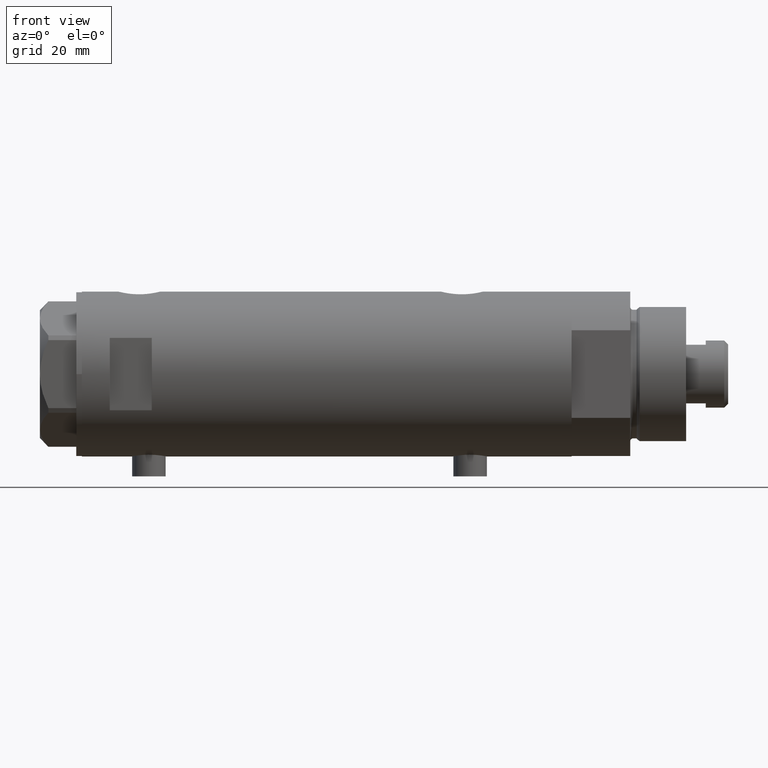
[diagram: clean part render]
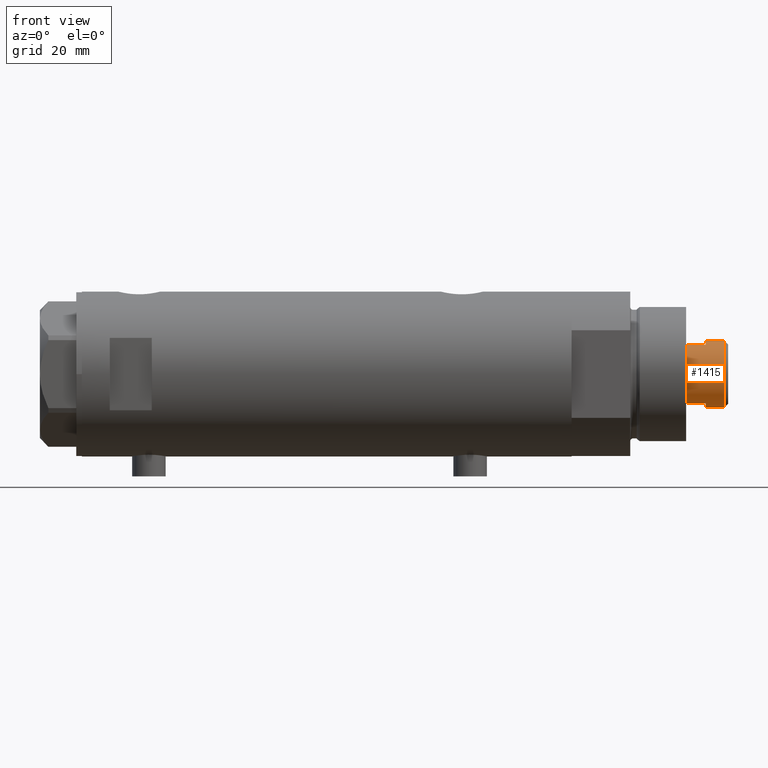
[diagram: same view with one face highlighted and labeled with its STEP entity id]
A machine part, front view. The second image highlights one B-rep face of the part: STEP entity #1415.
In plain terms, the highlighted cylindrical surface (edge-blend (fillet) strip) has radius 12 mm, axis along (-1, -0, 0).
Its self-contained STEP definition (entity closure, byte-faithful):
#82 = CARTESIAN_POINT ( 'NONE',  ( 0.000000000000000000, 0.000000000000000000, 206.2999999999999829 ) ) ;
#117 = VERTEX_POINT ( 'NONE', #705 ) ;
#145 = CARTESIAN_POINT ( 'NONE',  ( 0.000000000000000000, 0.000000000000000000, 192.6999999999999886 ) ) ;
#253 = CYLINDRICAL_SURFACE ( 'NONE', #973, 12.00000000000000000 ) ;
#389 = ORIENTED_EDGE ( 'NONE', *, *, #3303, .T. ) ;
#461 = CIRCLE ( 'NONE', #3798, 12.00000000000000000 ) ;
#558 = CARTESIAN_POINT ( 'NONE',  ( 12.00000000000000355, 1.469576158976824342E-15, 199.6999999999999886 ) ) ;
#677 = DIRECTION ( 'NONE',  ( -0.000000000000000000, -0.000000000000000000, -1.000000000000000000 ) ) ;
#698 = DIRECTION ( 'NONE',  ( -0.000000000000000000, -0.000000000000000000, -1.000000000000000000 ) ) ;
#705 = CARTESIAN_POINT ( 'NONE',  ( 10.48861764008966269, -5.830000000000016058, 192.6999999999999886 ) ) ;
#732 = DIRECTION ( 'NONE',  ( 0.000000000000000000, 0.000000000000000000, 1.000000000000000000 ) ) ;
#735 = ORIENTED_EDGE ( 'NONE', *, *, #2431, .F. ) ;
#873 = DIRECTION ( 'NONE',  ( 1.000000000000000000, 0.000000000000000000, 0.000000000000000000 ) ) ;
#958 = CARTESIAN_POINT ( 'NONE',  ( -10.48861764008966091, -5.830000000000003624, 199.6999999999999886 ) ) ;
#973 = AXIS2_PLACEMENT_3D ( 'NONE', #2011, #1727, #3105 ) ;
#1055 = AXIS2_PLACEMENT_3D ( 'NONE', #1406, #732, #3082 ) ;
#1163 = EDGE_LOOP ( 'NONE', ( #4397, #4448, #1454, #1551, #1709, #389, #735, #4037 ) ) ;
#1218 = LINE ( 'NONE', #2574, #2850 ) ;
#1241 = CARTESIAN_POINT ( 'NONE',  ( 0.000000000000000000, 0.000000000000000000, 199.6999999999999886 ) ) ;
#1314 = CARTESIAN_POINT ( 'NONE',  ( -12.00000000000000000, 0.000000000000000000, 206.2999999999999829 ) ) ;
#1338 = LINE ( 'NONE', #2416, #3513 ) ;
#1406 = CARTESIAN_POINT ( 'NONE',  ( 0.000000000000000000, 0.000000000000000000, 199.6999999999999886 ) ) ;
#1415 = ADVANCED_FACE ( 'NONE', ( #1655 ), #253, .T. ) ;
#1454 = ORIENTED_EDGE ( 'NONE', *, *, #2768, .T. ) ;
#1462 = DIRECTION ( 'NONE',  ( 0.000000000000000000, 0.000000000000000000, -1.000000000000000000 ) ) ;
#1478 = VERTEX_POINT ( 'NONE', #958 ) ;
#1488 = CIRCLE ( 'NONE', #1775, 12.00000000000000000 ) ;
#1522 = DIRECTION ( 'NONE',  ( 0.000000000000000000, 0.000000000000000000, 1.000000000000000000 ) ) ;
#1551 = ORIENTED_EDGE ( 'NONE', *, *, #1817, .T. ) ;
#1602 = CARTESIAN_POINT ( 'NONE',  ( -10.48861764008966091, -5.830000000000020499, 192.6999999999999886 ) ) ;
#1655 = FACE_OUTER_BOUND ( 'NONE', #1163, .T. ) ;
#1709 = ORIENTED_EDGE ( 'NONE', *, *, #2902, .T. ) ;
#1727 = DIRECTION ( 'NONE',  ( -0.000000000000000000, -0.000000000000000000, -1.000000000000000000 ) ) ;
#1766 = CARTESIAN_POINT ( 'NONE',  ( -12.00000000000000355, 0.000000000000000000, 199.6999999999999886 ) ) ;
#1775 = AXIS2_PLACEMENT_3D ( 'NONE', #82, #1462, #4247 ) ;
#1811 = EDGE_CURVE ( 'NONE', #4210, #3282, #3635, .T. ) ;
#1817 = EDGE_CURVE ( 'NONE', #4447, #1478, #2995, .T. ) ;
#2011 = CARTESIAN_POINT ( 'NONE',  ( 0.000000000000000000, 0.000000000000000000, 199.6999999999999886 ) ) ;
#2320 = DIRECTION ( 'NONE',  ( 1.000000000000000000, 0.000000000000000000, 0.000000000000000000 ) ) ;
#2413 = VERTEX_POINT ( 'NONE', #1314 ) ;
#2416 = CARTESIAN_POINT ( 'NONE',  ( 10.48861764008966446, -5.829999999999997407, 199.6999999999999886 ) ) ;
#2419 = VECTOR ( 'NONE', #3294, 1000.000000000000000 ) ;
#2431 = EDGE_CURVE ( 'NONE', #4436, #117, #1338, .T. ) ;
#2540 = EDGE_CURVE ( 'NONE', #4210, #2413, #1488, .T. ) ;
#2574 = CARTESIAN_POINT ( 'NONE',  ( -12.00000000000000000, 0.000000000000000000, 199.6999999999999886 ) ) ;
#2617 = CARTESIAN_POINT ( 'NONE',  ( 10.48861764008966446, -5.829999999999997407, 199.6999999999999886 ) ) ;
#2637 = DIRECTION ( 'NONE',  ( 0.000000000000000000, 0.000000000000000000, 1.000000000000000000 ) ) ;
#2662 = CARTESIAN_POINT ( 'NONE',  ( 12.00000000000000000, 1.469576158976823947E-15, 199.6999999999999886 ) ) ;
#2768 = EDGE_CURVE ( 'NONE', #2413, #4447, #1218, .T. ) ;
#2850 = VECTOR ( 'NONE', #4342, 1000.000000000000000 ) ;
#2902 = EDGE_CURVE ( 'NONE', #1478, #4354, #3038, .T. ) ;
#2995 = CIRCLE ( 'NONE', #3871, 12.00000000000000178 ) ;
#3038 = LINE ( 'NONE', #4396, #3427 ) ;
#3077 = CIRCLE ( 'NONE', #1055, 12.00000000000000178 ) ;
#3082 = DIRECTION ( 'NONE',  ( 1.000000000000000000, 0.000000000000000000, 0.000000000000000000 ) ) ;
#3105 = DIRECTION ( 'NONE',  ( -1.000000000000000000, 0.000000000000000000, 0.000000000000000000 ) ) ;
#3282 = VERTEX_POINT ( 'NONE', #558 ) ;
#3294 = DIRECTION ( 'NONE',  ( -0.000000000000000000, -0.000000000000000000, -1.000000000000000000 ) ) ;
#3303 = EDGE_CURVE ( 'NONE', #4354, #117, #461, .T. ) ;
#3427 = VECTOR ( 'NONE', #698, 1000.000000000000000 ) ;
#3513 = VECTOR ( 'NONE', #677, 1000.000000000000000 ) ;
#3540 = CARTESIAN_POINT ( 'NONE',  ( 12.00000000000000000, 1.469576158976823947E-15, 206.2999999999999829 ) ) ;
#3635 = LINE ( 'NONE', #2662, #2419 ) ;
#3798 = AXIS2_PLACEMENT_3D ( 'NONE', #145, #1522, #873 ) ;
#3871 = AXIS2_PLACEMENT_3D ( 'NONE', #1241, #2637, #2320 ) ;
#4037 = ORIENTED_EDGE ( 'NONE', *, *, #4465, .T. ) ;
#4210 = VERTEX_POINT ( 'NONE', #3540 ) ;
#4247 = DIRECTION ( 'NONE',  ( 1.000000000000000000, 0.000000000000000000, 0.000000000000000000 ) ) ;
#4342 = DIRECTION ( 'NONE',  ( -0.000000000000000000, -0.000000000000000000, -1.000000000000000000 ) ) ;
#4354 = VERTEX_POINT ( 'NONE', #1602 ) ;
#4396 = CARTESIAN_POINT ( 'NONE',  ( -10.48861764008966091, -5.830000000000000959, 199.6999999999999886 ) ) ;
#4397 = ORIENTED_EDGE ( 'NONE', *, *, #1811, .F. ) ;
#4436 = VERTEX_POINT ( 'NONE', #2617 ) ;
#4447 = VERTEX_POINT ( 'NONE', #1766 ) ;
#4448 = ORIENTED_EDGE ( 'NONE', *, *, #2540, .T. ) ;
#4465 = EDGE_CURVE ( 'NONE', #4436, #3282, #3077, .T. ) ;